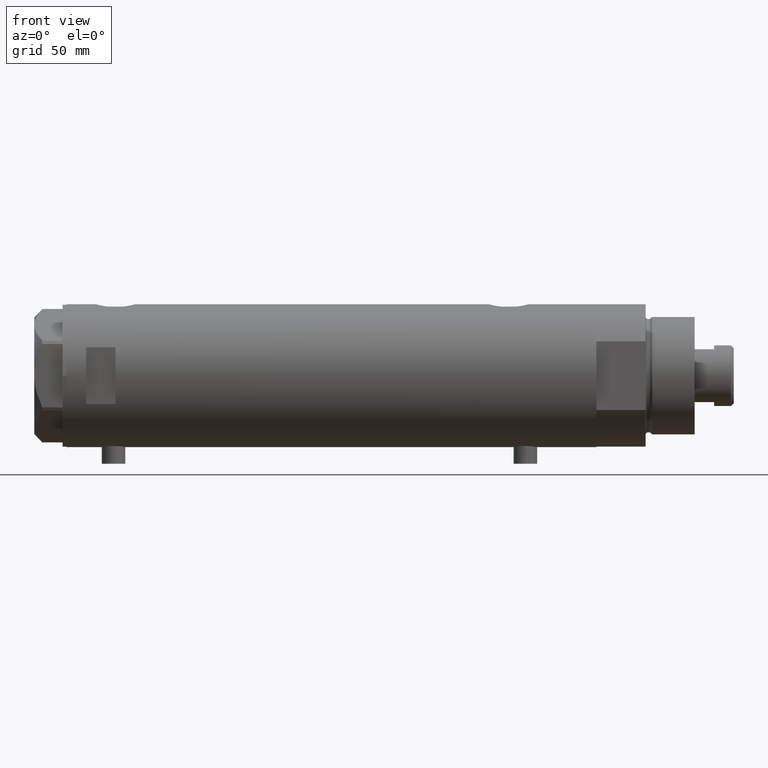
[diagram: clean part render]
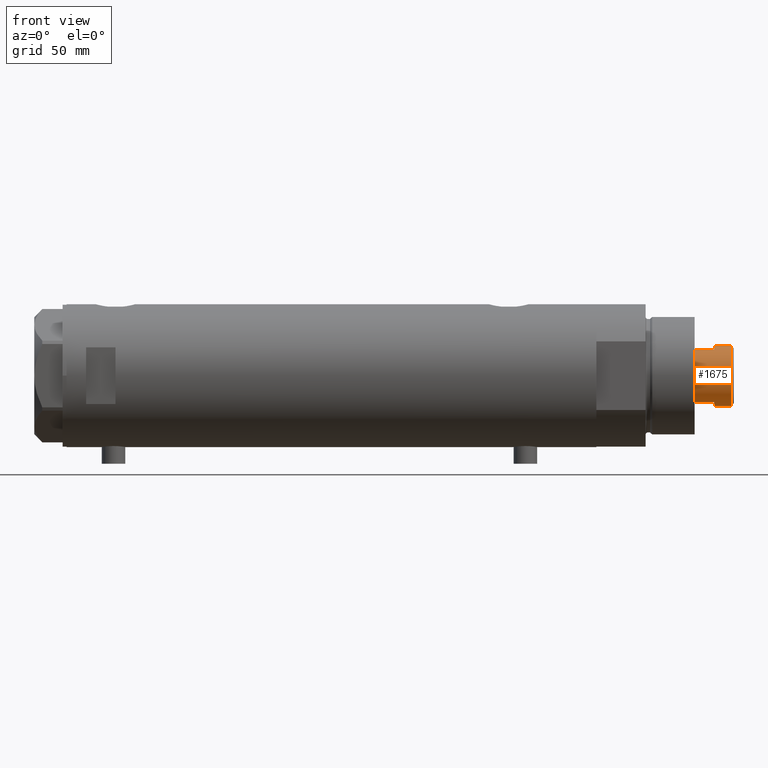
[diagram: same view with one face highlighted and labeled with its STEP entity id]
A machine part, front view. The second image highlights one B-rep face of the part: STEP entity #1675.
In plain terms, the highlighted cylindrical surface (edge-blend (fillet) strip) has radius 15.5 mm, axis along (-1, -0, 0).
Its self-contained STEP definition (entity closure, byte-faithful):
#78 = EDGE_CURVE ( 'NONE', #3312, #477, #442, .T. ) ;
#88 = DIRECTION ( 'NONE',  ( -0.000000000000000000, -0.000000000000000000, -1.000000000000000000 ) ) ;
#165 = VECTOR ( 'NONE', #2589, 1000.000000000000000 ) ;
#204 = ORIENTED_EDGE ( 'NONE', *, *, #1067, .T. ) ;
#259 = EDGE_LOOP ( 'NONE', ( #2814, #450, #4400, #3456, #4178, #4254, #2760, #204 ) ) ;
#442 = CIRCLE ( 'NONE', #1761, 15.49999999999999822 ) ;
#450 = ORIENTED_EDGE ( 'NONE', *, *, #3172, .T. ) ;
#477 = VERTEX_POINT ( 'NONE', #3074 ) ;
#523 = VECTOR ( 'NONE', #4180, 1000.000000000000000 ) ;
#537 = DIRECTION ( 'NONE',  ( 1.000000000000000000, 0.000000000000000000, 0.000000000000000000 ) ) ;
#575 = DIRECTION ( 'NONE',  ( 0.000000000000000000, 0.000000000000000000, 1.000000000000000000 ) ) ;
#603 = CIRCLE ( 'NONE', #3985, 15.49999999999999822 ) ;
#630 = CARTESIAN_POINT ( 'NONE',  ( 0.000000000000000000, 0.000000000000000000, 295.0000000000000000 ) ) ;
#870 = DIRECTION ( 'NONE',  ( 1.000000000000000000, 0.000000000000000000, 0.000000000000000000 ) ) ;
#899 = VECTOR ( 'NONE', #88, 1000.000000000000000 ) ;
#919 = CARTESIAN_POINT ( 'NONE',  ( -15.49999999999999822, 0.000000000000000000, 313.5999999999999659 ) ) ;
#976 = CARTESIAN_POINT ( 'NONE',  ( 15.49999999999999822, 1.898202538678397163E-15, 313.5999999999999659 ) ) ;
#1067 = EDGE_CURVE ( 'NONE', #1928, #2716, #3189, .T. ) ;
#1243 = CARTESIAN_POINT ( 'NONE',  ( 13.48630416385453046, -7.639999999999995239, 305.0000000000000000 ) ) ;
#1349 = CYLINDRICAL_SURFACE ( 'NONE', #1550, 15.49999999999999822 ) ;
#1453 = LINE ( 'NONE', #1807, #523 ) ;
#1498 = LINE ( 'NONE', #2275, #165 ) ;
#1550 = AXIS2_PLACEMENT_3D ( 'NONE', #3048, #4431, #2688 ) ;
#1602 = EDGE_CURVE ( 'NONE', #2293, #2366, #2765, .T. ) ;
#1632 = VERTEX_POINT ( 'NONE', #919 ) ;
#1655 = CARTESIAN_POINT ( 'NONE',  ( -15.50000000000000178, 0.000000000000000000, 305.0000000000000000 ) ) ;
#1675 = ADVANCED_FACE ( 'NONE', ( #3026 ), #1349, .T. ) ;
#1761 = AXIS2_PLACEMENT_3D ( 'NONE', #630, #575, #2013 ) ;
#1807 = CARTESIAN_POINT ( 'NONE',  ( -13.48630416385452691, -7.640000000000001457, 305.0000000000000000 ) ) ;
#1903 = VECTOR ( 'NONE', #3656, 1000.000000000000000 ) ;
#1928 = VERTEX_POINT ( 'NONE', #2697 ) ;
#1964 = AXIS2_PLACEMENT_3D ( 'NONE', #2217, #4313, #537 ) ;
#2013 = DIRECTION ( 'NONE',  ( 1.000000000000000000, 0.000000000000000000, 0.000000000000000000 ) ) ;
#2217 = CARTESIAN_POINT ( 'NONE',  ( 0.000000000000000000, 0.000000000000000000, 305.0000000000000000 ) ) ;
#2222 = VERTEX_POINT ( 'NONE', #976 ) ;
#2275 = CARTESIAN_POINT ( 'NONE',  ( 15.49999999999999822, 1.898202538678397163E-15, 305.0000000000000000 ) ) ;
#2293 = VERTEX_POINT ( 'NONE', #1655 ) ;
#2302 = CARTESIAN_POINT ( 'NONE',  ( -15.49999999999999822, 0.000000000000000000, 305.0000000000000000 ) ) ;
#2349 = DIRECTION ( 'NONE',  ( 1.000000000000000000, 0.000000000000000000, 0.000000000000000000 ) ) ;
#2366 = VERTEX_POINT ( 'NONE', #3147 ) ;
#2589 = DIRECTION ( 'NONE',  ( -0.000000000000000000, -0.000000000000000000, -1.000000000000000000 ) ) ;
#2632 = CARTESIAN_POINT ( 'NONE',  ( 0.000000000000000000, 0.000000000000000000, 313.5999999999999659 ) ) ;
#2678 = EDGE_CURVE ( 'NONE', #1632, #2293, #2680, .T. ) ;
#2680 = LINE ( 'NONE', #2302, #1903 ) ;
#2688 = DIRECTION ( 'NONE',  ( -1.000000000000000000, 0.000000000000000000, 0.000000000000000000 ) ) ;
#2697 = CARTESIAN_POINT ( 'NONE',  ( 13.48630416385453046, -7.639999999999995239, 305.0000000000000000 ) ) ;
#2716 = VERTEX_POINT ( 'NONE', #3376 ) ;
#2760 = ORIENTED_EDGE ( 'NONE', *, *, #4204, .F. ) ;
#2765 = CIRCLE ( 'NONE', #4344, 15.50000000000000000 ) ;
#2809 = CARTESIAN_POINT ( 'NONE',  ( -13.48630416385452513, -7.639999999999921521, 295.0000000000000000 ) ) ;
#2814 = ORIENTED_EDGE ( 'NONE', *, *, #4256, .F. ) ;
#2845 = EDGE_CURVE ( 'NONE', #2366, #3312, #1453, .T. ) ;
#3026 = FACE_OUTER_BOUND ( 'NONE', #259, .T. ) ;
#3048 = CARTESIAN_POINT ( 'NONE',  ( 0.000000000000000000, 0.000000000000000000, 305.0000000000000000 ) ) ;
#3074 = CARTESIAN_POINT ( 'NONE',  ( 13.48630416385452691, -7.639999999999914415, 295.0000000000000000 ) ) ;
#3147 = CARTESIAN_POINT ( 'NONE',  ( -13.48630416385452335, -7.640000000000004121, 305.0000000000000000 ) ) ;
#3172 = EDGE_CURVE ( 'NONE', #2222, #1632, #603, .T. ) ;
#3189 = CIRCLE ( 'NONE', #1964, 15.50000000000000000 ) ;
#3312 = VERTEX_POINT ( 'NONE', #2809 ) ;
#3376 = CARTESIAN_POINT ( 'NONE',  ( 15.50000000000000178, 1.898202538678397557E-15, 305.0000000000000000 ) ) ;
#3456 = ORIENTED_EDGE ( 'NONE', *, *, #1602, .T. ) ;
#3544 = LINE ( 'NONE', #1243, #899 ) ;
#3656 = DIRECTION ( 'NONE',  ( -0.000000000000000000, -0.000000000000000000, -1.000000000000000000 ) ) ;
#3786 = DIRECTION ( 'NONE',  ( 0.000000000000000000, 0.000000000000000000, -1.000000000000000000 ) ) ;
#3886 = CARTESIAN_POINT ( 'NONE',  ( 0.000000000000000000, 0.000000000000000000, 305.0000000000000000 ) ) ;
#3956 = DIRECTION ( 'NONE',  ( 0.000000000000000000, 0.000000000000000000, 1.000000000000000000 ) ) ;
#3985 = AXIS2_PLACEMENT_3D ( 'NONE', #2632, #3786, #2349 ) ;
#4178 = ORIENTED_EDGE ( 'NONE', *, *, #2845, .T. ) ;
#4180 = DIRECTION ( 'NONE',  ( -0.000000000000000000, -0.000000000000000000, -1.000000000000000000 ) ) ;
#4204 = EDGE_CURVE ( 'NONE', #1928, #477, #3544, .T. ) ;
#4254 = ORIENTED_EDGE ( 'NONE', *, *, #78, .T. ) ;
#4256 = EDGE_CURVE ( 'NONE', #2222, #2716, #1498, .T. ) ;
#4313 = DIRECTION ( 'NONE',  ( 0.000000000000000000, 0.000000000000000000, 1.000000000000000000 ) ) ;
#4344 = AXIS2_PLACEMENT_3D ( 'NONE', #3886, #3956, #870 ) ;
#4400 = ORIENTED_EDGE ( 'NONE', *, *, #2678, .T. ) ;
#4431 = DIRECTION ( 'NONE',  ( -0.000000000000000000, -0.000000000000000000, -1.000000000000000000 ) ) ;